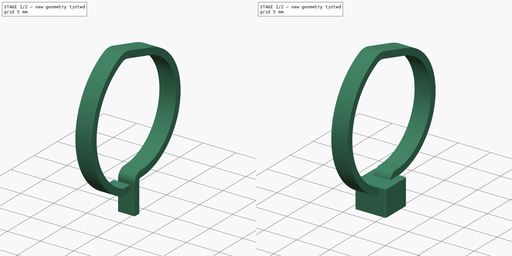
[diagram: build sequence overview — one tinted view per stage of 2, left to right]
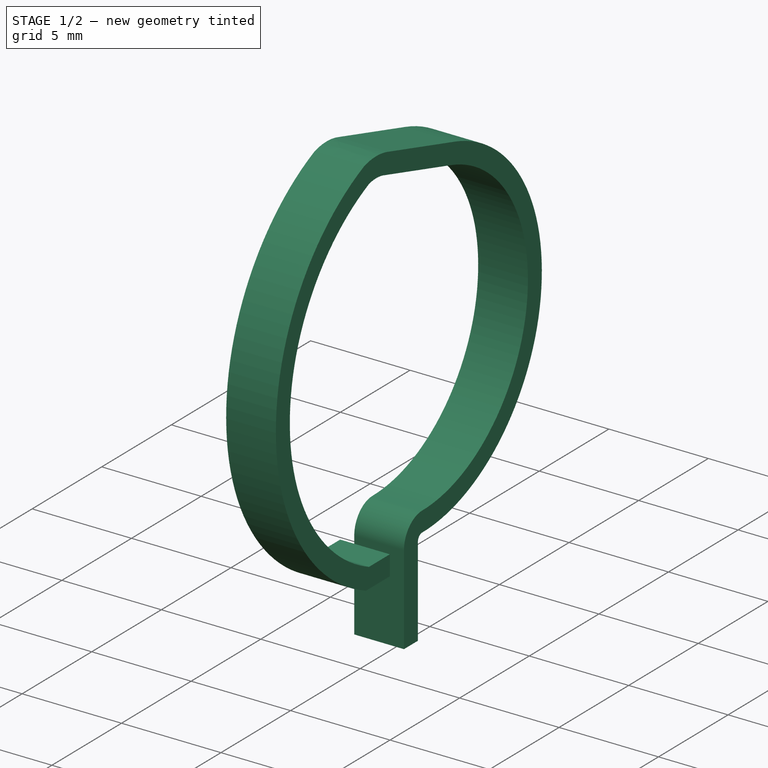
[diagram: stage 1 of 2 — iso view after this stage's code; geometry added in this stage tinted green]
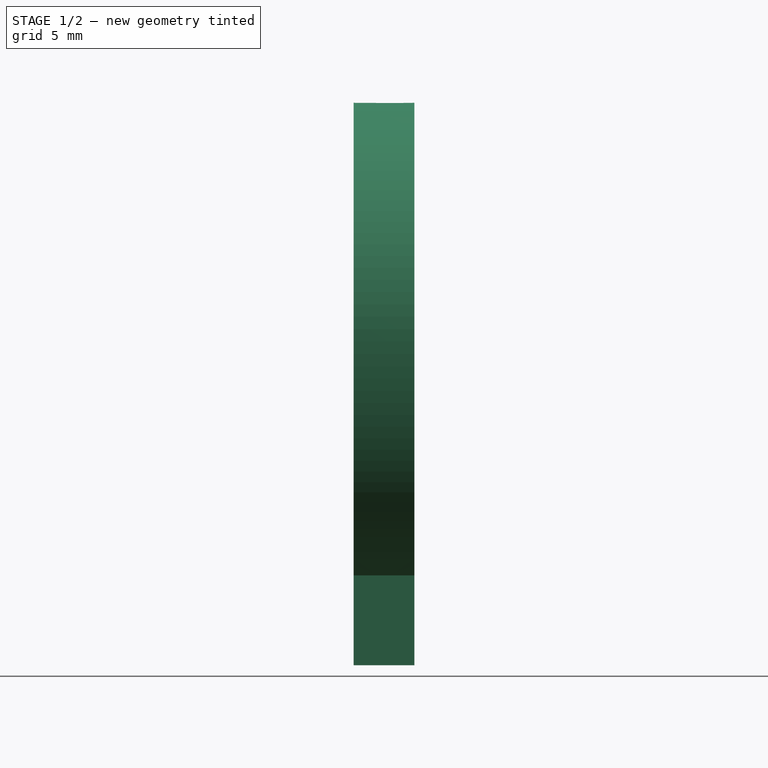
[diagram: stage 1 of 2 — front view after this stage's code; geometry added in this stage tinted green]
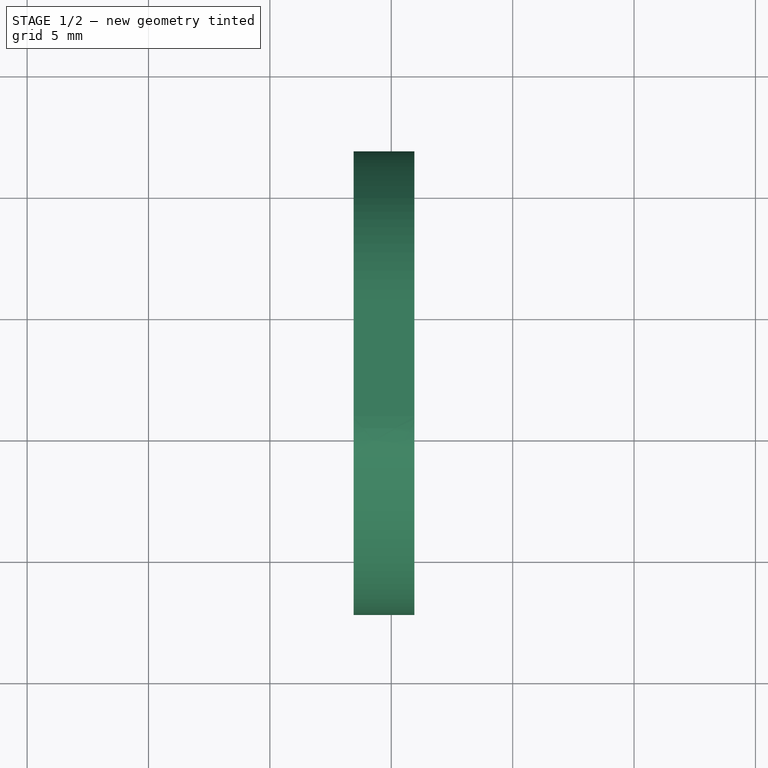
[diagram: stage 1 of 2 — top view after this stage's code; geometry added in this stage tinted green]
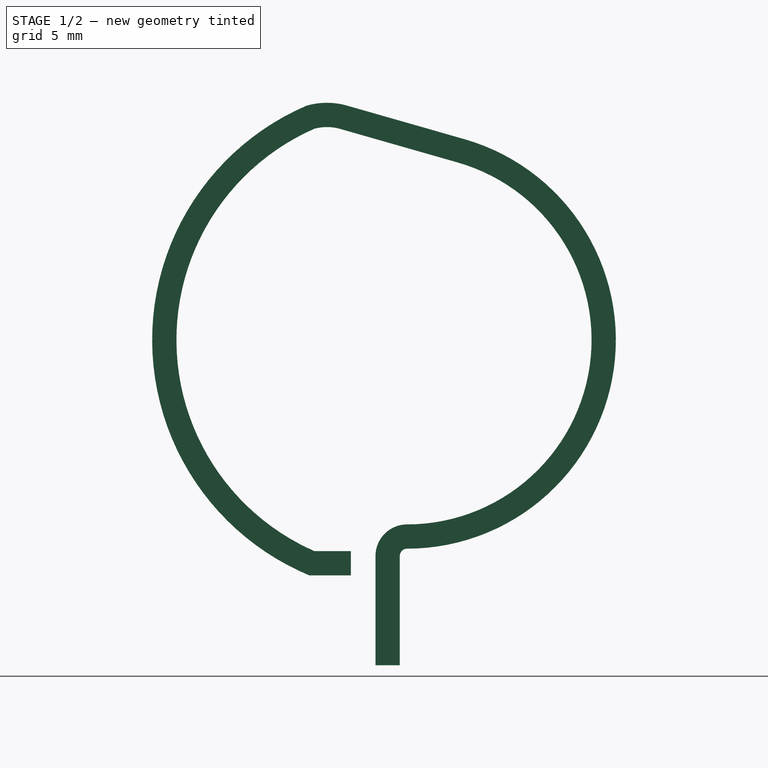
[diagram: stage 1 of 2 — right view after this stage's code; geometry added in this stage tinted green]
FCSTD DOCUMENT  (FreeCAD 0.16R6712 (Git))
Label: Toronado-Carrier-Assembly
License: CreativeCommons Attribution-ShareAlike
LicenseURL: http://creativecommons.org/licenses/by-sa/4.0/
objects: Part::Feature×9, Sketcher::SketchObject×2, Part::Sweep×1, Part::MultiFuse×1, App::DocumentObjectGroup×1
note: 13 computed .brp shape members not serialized (recipe doc carries the construction recipe); baked Part::Feature solids carry a one-line shape summary decoded from their .brp

FEATURE [Part::Feature] Cut006  label="x-carriage-final"
  Placement = pos=(-0.216609,28.1,198) rot=(0.57735,0.57735,-0.57735;4.18879rad)
  shape: bbox 60.89 x 24.79 x 82.58 mm, 108 faces (baked)
FEATURE [Part::Feature] Revolution012  label="x-LM8uu-top-1"
  Placement = pos=(14.7834,28.115,197.987) rot=(0,0,1;1.5708rad)
  shape: bbox 24 x 15 x 15 mm, 20 faces (baked)
FEATURE [Part::Feature] Revolution013  label="x-LM8uu-top-002"
  Placement = pos=(-15.2166,28.115,197.987) rot=(0,0,1;1.5708rad)
  shape: bbox 24 x 15 x 15 mm, 20 faces (baked)
FEATURE [Part::Feature] Revolution014  label="x-LM8uu-bottom-003"
  Placement = pos=(-0.0166088,28.087,152.987) rot=(0,0,1;1.5708rad)
  shape: bbox 24 x 15 x 15 mm, 20 faces (baked)
FEATURE [Part::Feature] Pocket023  label="zip-tie-head-003"
  Placement = pos=(-0.216609,26.4347,186.55) rot=(0,0,1;0rad)
  shape: bbox 4.7 x 4.5 x 3.9 mm, 14 faces (baked)
FEATURE [Sketcher::SketchObject] Sketch012  label="zip-tie-x-carriage-path-sketch"
  Placement = pos=(-0.3,0,0) rot=(0.57735,0.57735,0.57735;2.0944rad)
  sketch-geometry (13):
    g0: ArcOfCircle CenterX=28.09 CenterY=199 CenterZ=0 NormalX=0 NormalY=0 NormalZ=1 Radius=9.5 StartAngle=1.98412 EndAngle=4.29906
    g1: LineSegment [constr] StartX=24.2742 StartY=207.7 StartZ=0 EndX=24.2742 EndY=190.3 EndZ=0
    g2: LineSegment StartX=25.3397 StartY=207.691 StartZ=0 EndX=30.1789 EndY=206.307 EndZ=0
    g3: Circle [constr] CenterX=28.09 CenterY=199 CenterZ=0 NormalX=0 NormalY=0 NormalZ=1 Radius=7.6
    g4: LineSegment [constr] StartX=30.1789 StartY=206.307 StartZ=0 EndX=28.09 EndY=199 EndZ=0
    g5: ArcOfCircle CenterX=28.09 CenterY=199 CenterZ=0 NormalX=0 NormalY=0 NormalZ=1 Radius=7.6 StartAngle=4.71239 EndAngle=7.57555
    g6: LineSegment [constr] StartX=28.09 StartY=199 StartZ=0 EndX=28.09 EndY=191.4 EndZ=0
    g7: LineSegment [constr] StartX=24.2742 StartY=207.7 StartZ=0 EndX=24.79 EndY=205.768 EndZ=0
    g8: ArcOfCircle CenterX=24.79 CenterY=205.768 CenterZ=0 NormalX=0 NormalY=0 NormalZ=1 Radius=2 StartAngle=1.29236 EndAngle=1.83162
    g9: ArcOfCircle CenterX=28.09 CenterY=190.1 CenterZ=0 NormalX=0 NormalY=0 NormalZ=1 Radius=1.3 StartAngle=1.5708 EndAngle=3.14159
    g10: LineSegment [constr] StartX=26.79 StartY=190.1 StartZ=0 EndX=28.09 EndY=190.1 EndZ=0
    g11: LineSegment StartX=26.79 StartY=190.1 StartZ=0 EndX=26.79 EndY=185.6 EndZ=0
    g12: LineSegment StartX=24.2742 StartY=190.3 StartZ=0 EndX=25.7742 EndY=190.3 EndZ=0
  constraints (37):
    c: DistanceY(g-1,g0) = 199
    c: DistanceX(g-1,g0) = 28.09
    c: Radius(g0) = 9.5
    c: Vertical(g1)
    c: Coincident(g1,g0)
    c: Coincident(g1,g0)
    c: Coincident(g3,g0)
    c: Coincident(g4,g2)
    c: Coincident(g4,g0)
    c: Perpendicular(g2,g4)
    c: Tangent(g2,g3)
    c: Radius(g3) = 7.6
    c: Coincident(g5,g0)
    c: Coincident(g5,g2)
    c: Vertical(g6)
    c: Coincident(g6,g0)
    c: Coincident(g6,g5)
    c: Coincident(g7,g0)
    c: Coincident(g8,g7)
    c: Coincident(g2,g8)
    c: Coincident(g8,g0)
    c: Tangent(g8,g2)
    c: Horizontal(g10)
    c: Coincident(g10,g9)
    c: Coincident(g10,g9)
    c: PointOnObject(g9,g6)
    c: Coincident(g9,g5)
    c: Vertical(g11)
    c: Tangent(g11,g8)
    c: Coincident(g11,g9)
    c: DistanceY(g11) = -4.5
    c: Radius(g9) = 1.3
    c: DistanceY(g-1,g0) = 190.3
    c: Radius(g8) = 2
    c: Horizontal(g12)
    c: Coincident(g12,g0)
    c: DistanceX(g12) = 1.5
FEATURE [Sketcher::SketchObject] Sketch013  label="zip-tie-section-x-carriage-sketch"
  Placement = pos=(-0.3,26.79,185.6) rot=(0,0,1;0rad)
  sketch-geometry (4):
    g0: LineSegment StartX=-1.25 StartY=1 StartZ=0 EndX=1.25 EndY=1 EndZ=0
    g1: LineSegment StartX=1.25 StartY=1 StartZ=0 EndX=1.25 EndY=0 EndZ=0
    g2: LineSegment StartX=1.25 StartY=0 StartZ=0 EndX=-1.25 EndY=0 EndZ=0
    g3: LineSegment StartX=-1.25 StartY=0 StartZ=0 EndX=-1.25 EndY=1 EndZ=0
  constraints (12):
    c: Coincident(g0,g1)
    c: Coincident(g1,g2)
    c: Coincident(g2,g3)
    c: Coincident(g3,g0)
    c: Horizontal(g0)
    c: Horizontal(g2)
    c: Vertical(g1)
    c: Vertical(g3)
    c: DistanceY(g1) = -1
    c: DistanceX(g0) = 2.5
    c: Symmetric(g2,g1,g-2)
    c: PointOnObject(g2,g-1)
FEATURE [Part::Sweep] Sweep011
  Frenet = true
  Sections = -> [Sketch013]
  Solid = true
  Spine = -> Sketch012
  Transition = 1
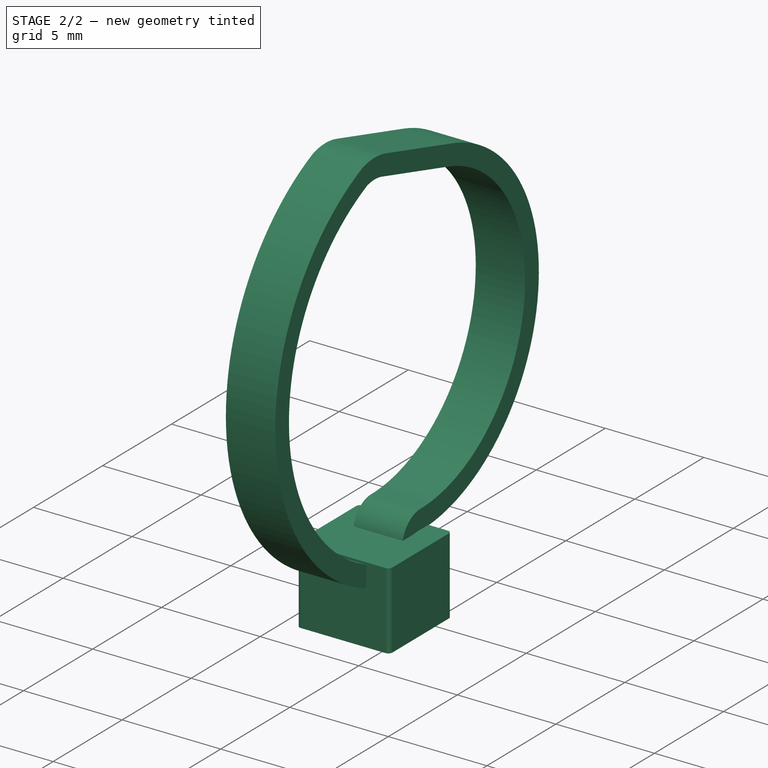
[diagram: stage 2 of 2 — iso view after this stage's code; geometry added in this stage tinted green]
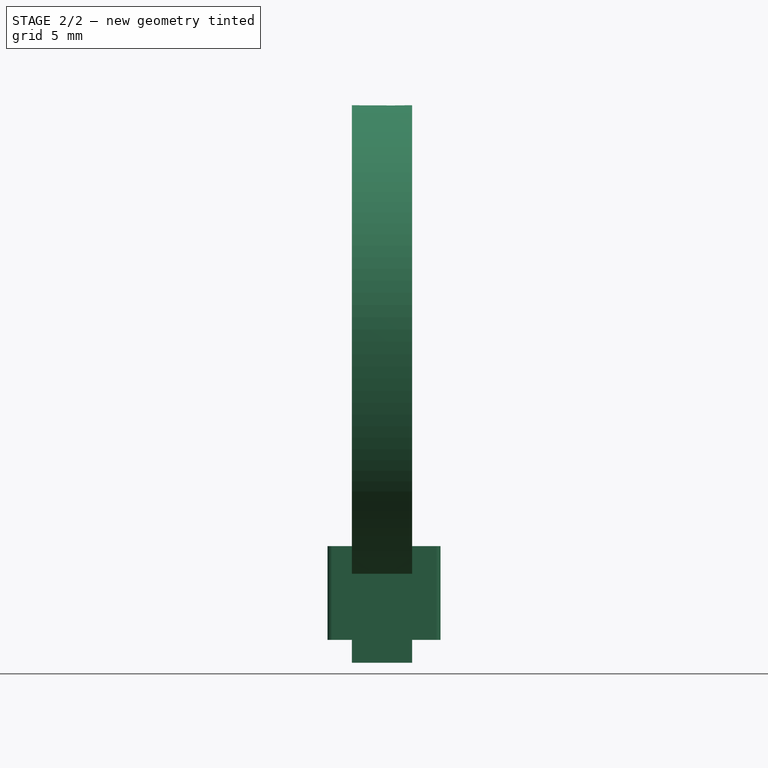
[diagram: stage 2 of 2 — front view after this stage's code; geometry added in this stage tinted green]
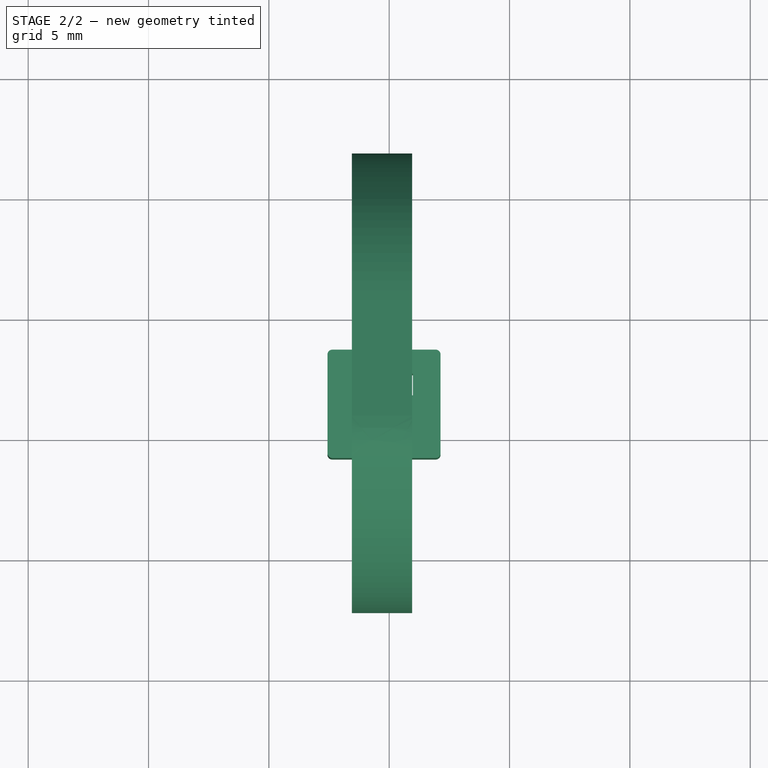
[diagram: stage 2 of 2 — top view after this stage's code; geometry added in this stage tinted green]
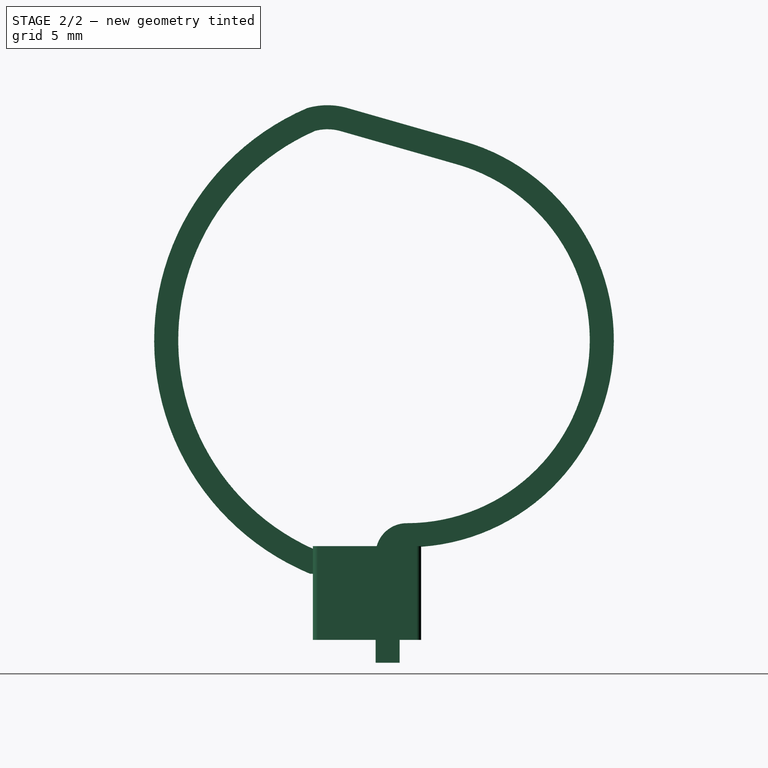
[diagram: stage 2 of 2 — right view after this stage's code; geometry added in this stage tinted green]
FEATURE [Part::MultiFuse] Fusion016  label="x-carriage-zip-tie"
  Placement = pos=(0,0,-46) rot=(0,0,1;0rad)
  Shapes = -> [Sweep011,Pocket023]
FEATURE [Part::Feature] Pocket024  label="x-carriage-B-final"
  Placement = pos=(-32.2166,16.1847,169.797) rot=(0,0,1;0rad)
  shape: bbox 9.5 x 17 x 9.4 mm, 21 faces (baked)
FEATURE [Part::Feature] Chamfer001001001001001001090  label="M3-nut"
  Placement = pos=(-14.2166,22.1,174.5) rot=(0.57735,0.57735,-0.57735;2.0944rad)
  shape: bbox 2.4 x 6.35 x 6.35 mm, 29 faces (baked)
FEATURE [Part::Feature] Chamfer001001001001001001091  label="M3x20-hex-bolt002"
  Placement = pos=(-29.1166,22.1847,174.497) rot=(0.57735,0.57735,-0.57735;4.18879rad)
  shape: bbox 23 x 5.5 x 5.5 mm, 16 faces (baked)
FEATURE [App::DocumentObjectGroup] Group019  label="x-carriage"
  Group = -> [Cut006,Revolution012,Revolution013,Revolution014,Fusion016,Pocket024,Chamfer001001001001001001090,Chamfer001001001001001001091]
FEATURE [Part::Feature] tpge_xcarriage001001  label="tpge_xcarriage002"
  Placement = pos=(0.283391,16.1847,176) rot=(-1,0,0;1.5708rad)
  shape: bbox 57 x 23.25 x 78.4 mm, 1894 faces, 0 solids (baked)
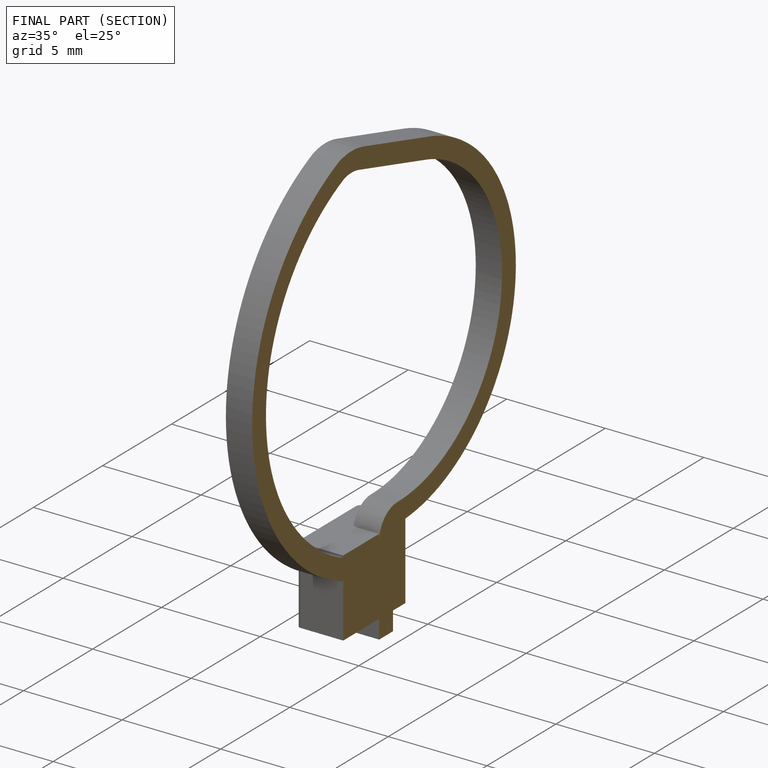
[diagram: finished part — half-section view (interior)]
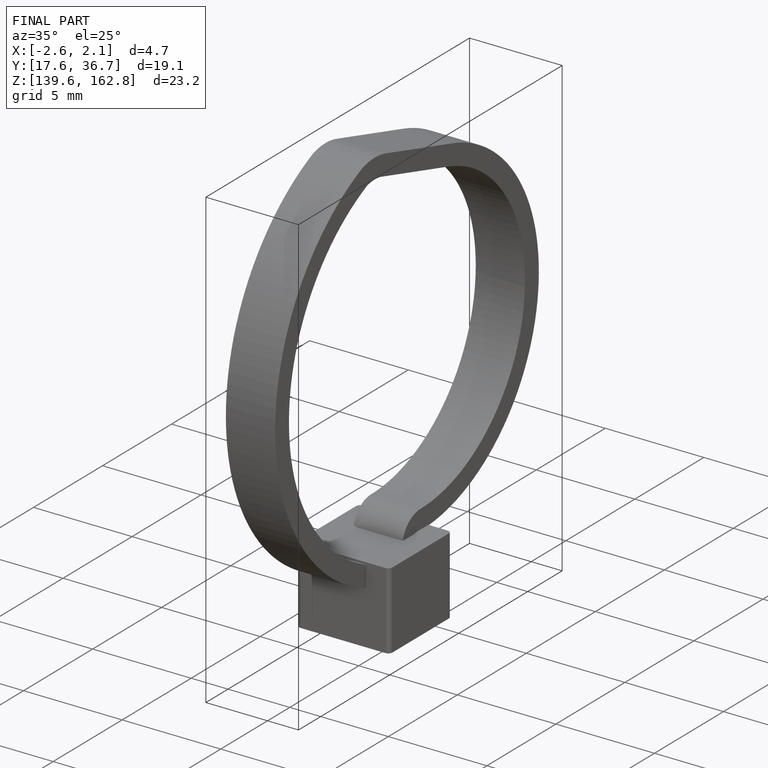
[diagram: finished part — iso view with bounding-box wireframe]
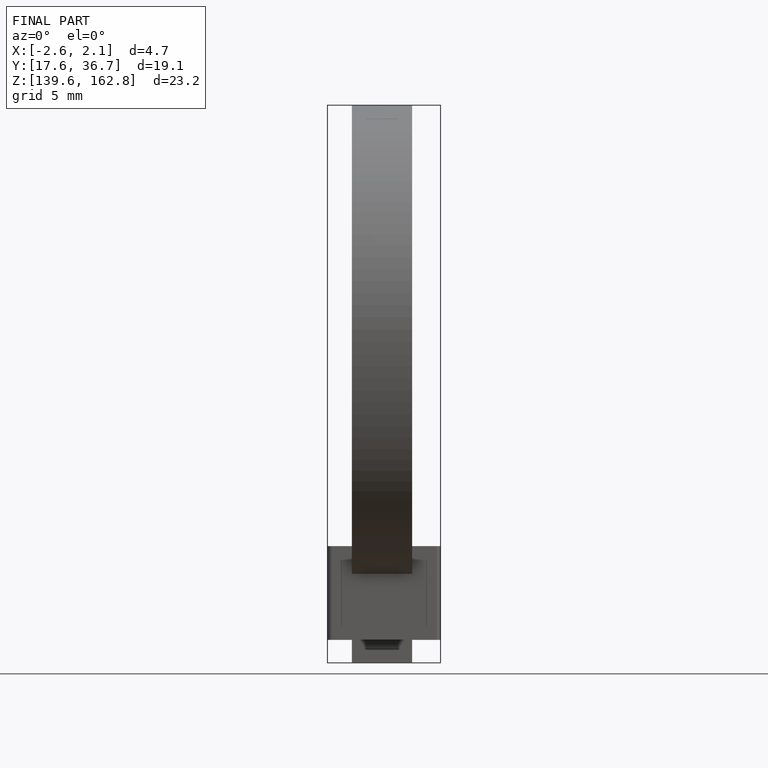
[diagram: finished part — front view with bounding-box wireframe]
